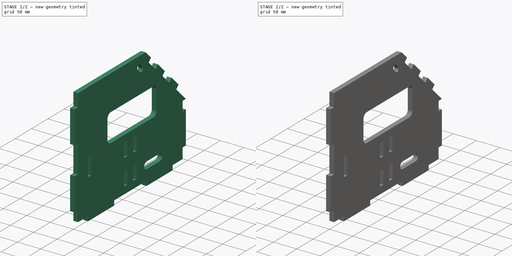
[diagram: build sequence overview — one tinted view per stage of 2, left to right]
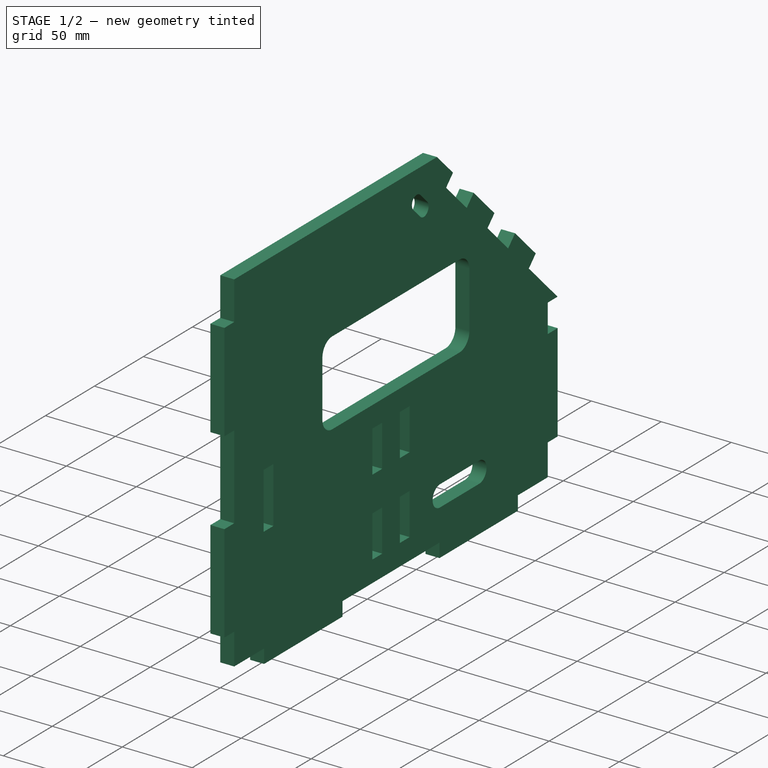
[diagram: stage 1 of 2 — iso view after this stage's code; geometry added in this stage tinted green]
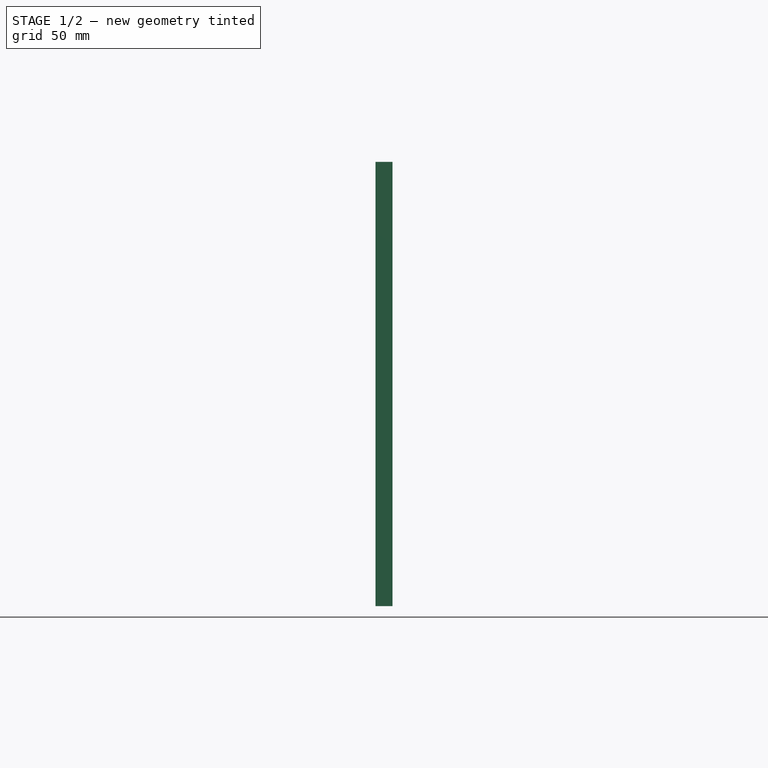
[diagram: stage 1 of 2 — front view after this stage's code; geometry added in this stage tinted green]
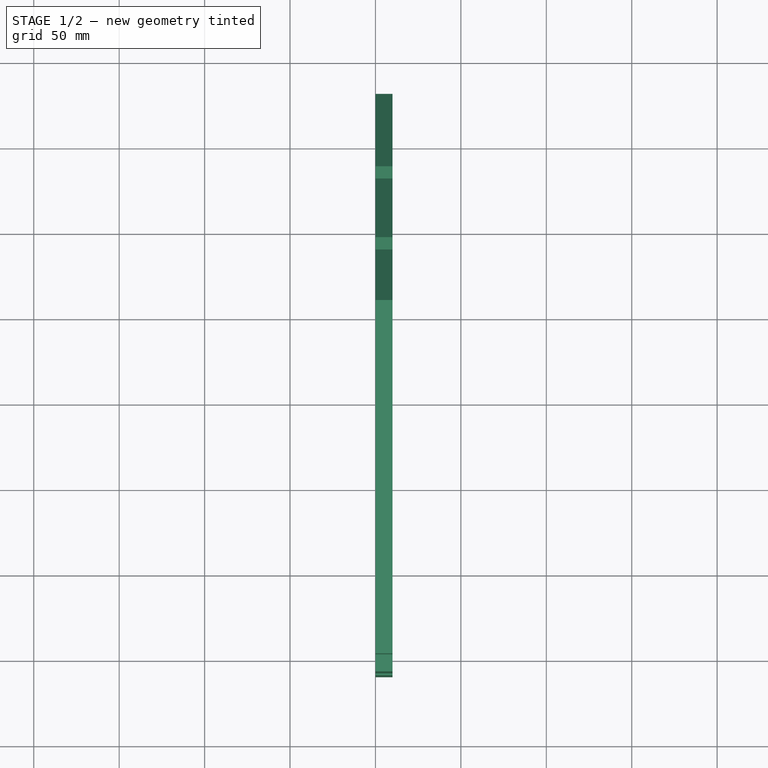
[diagram: stage 1 of 2 — top view after this stage's code; geometry added in this stage tinted green]
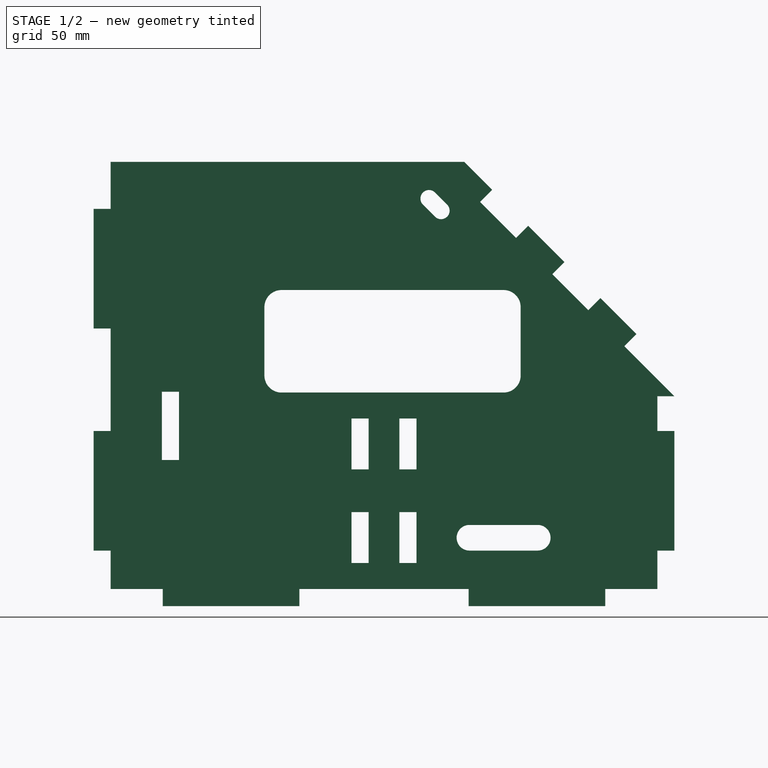
[diagram: stage 1 of 2 — right view after this stage's code; geometry added in this stage tinted green]
FCSTD DOCUMENT  (FreeCAD 0.19R19327 (Git))
Label: Separador
License: All rights reserved
LicenseURL: http://en.wikipedia.org/wiki/All_rights_reserved
objects: Sketcher::SketchObject×2, PartDesign::Pad×1, PartDesign::Pocket×1, PartDesign::Body×1
note: 7 computed .brp shape members not serialized (recipe doc carries the construction recipe); baked Part::Feature solids carry a one-line shape summary decoded from their .brp

FEATURE [Sketcher::SketchObject] Sketch
  MapMode = 5
  Placement = pos=(0,0,0) rot=(0.57735,0.57735,0.57735;2.0944rad)
  Support = -> [YZ_Plane]
  sketch-geometry (76):
    g0: LineSegment StartX=0 StartY=0 StartZ=0 EndX=0 EndY=22.5 EndZ=0
    g1: LineSegment StartX=0 StartY=22.5 StartZ=0 EndX=-10 EndY=22.5 EndZ=0
    g2: LineSegment StartX=-10 StartY=22.5 StartZ=0 EndX=-10 EndY=92.5 EndZ=0
    g3: LineSegment StartX=-10 StartY=92.5 StartZ=0 EndX=0 EndY=92.5 EndZ=0
    g4: LineSegment StartX=0 StartY=92.5 StartZ=0 EndX=0 EndY=152.5 EndZ=0
    g5: LineSegment StartX=0 StartY=152.5 StartZ=0 EndX=-10 EndY=152.5 EndZ=0
    g6: LineSegment StartX=-10 StartY=152.5 StartZ=0 EndX=-10 EndY=222.5 EndZ=0
    g7: LineSegment StartX=-10 StartY=222.5 StartZ=0 EndX=0 EndY=222.5 EndZ=0
    g8: LineSegment StartX=0 StartY=222.5 StartZ=0 EndX=0 EndY=250 EndZ=0
    g9: LineSegment StartX=320 StartY=112.8 StartZ=0 EndX=320 EndY=92.5 EndZ=0
    g10: LineSegment StartX=320 StartY=92.5 StartZ=0 EndX=330 EndY=92.5 EndZ=0
    g11: LineSegment StartX=330 StartY=92.5 StartZ=0 EndX=330 EndY=22.5 EndZ=0
    g12: LineSegment StartX=330 StartY=22.5 StartZ=0 EndX=320 EndY=22.5 EndZ=0
    g13: LineSegment StartX=320 StartY=22.5 StartZ=0 EndX=320 EndY=0 EndZ=0
    g14: LineSegment StartX=320 StartY=0 StartZ=0 EndX=289.5 EndY=0 EndZ=0
    g15: LineSegment StartX=289.5 StartY=0 StartZ=0 EndX=289.5 EndY=-10 EndZ=0
    g16: LineSegment StartX=289.5 StartY=-10 StartZ=0 EndX=209.5 EndY=-10 EndZ=0
    g17: LineSegment StartX=209.5 StartY=-10 StartZ=0 EndX=209.5 EndY=0 EndZ=0
    g18: LineSegment StartX=209.5 StartY=0 StartZ=0 EndX=110.5 EndY=0 EndZ=0
    g19: LineSegment StartX=110.5 StartY=0 StartZ=0 EndX=110.5 EndY=-10 EndZ=0
    g20: LineSegment StartX=110.5 StartY=-10 StartZ=0 EndX=30.5 EndY=-10 EndZ=0
    g21: LineSegment StartX=30.5 StartY=-10 StartZ=0 EndX=30.5 EndY=0 EndZ=0
    g22: LineSegment StartX=30.5 StartY=0 StartZ=0 EndX=0 EndY=0 EndZ=0
    g23: LineSegment StartX=320 StartY=112.8 StartZ=0 EndX=330 EndY=112.8 EndZ=0
    g24: LineSegment StartX=330 StartY=112.8 StartZ=0 EndX=300.634 EndY=142.166 EndZ=0
    g25: LineSegment StartX=300.634 StartY=142.166 StartZ=0 EndX=307.705 EndY=149.237 EndZ=0
    g26: LineSegment StartX=307.705 StartY=149.237 StartZ=0 EndX=286.633 EndY=170.309 EndZ=0
    g27: LineSegment StartX=286.633 StartY=170.309 StartZ=0 EndX=279.562 EndY=163.238 EndZ=0
    g28: LineSegment StartX=279.562 StartY=163.238 StartZ=0 EndX=258.49 EndY=184.31 EndZ=0
    g29: LineSegment StartX=258.49 StartY=184.31 StartZ=0 EndX=265.561 EndY=191.381 EndZ=0
    g30: LineSegment StartX=265.561 StartY=191.381 StartZ=0 EndX=244.348 EndY=212.594 EndZ=0
    g31: LineSegment StartX=244.348 StartY=212.594 StartZ=0 EndX=237.277 EndY=205.523 EndZ=0
    g32: LineSegment StartX=237.277 StartY=205.523 StartZ=0 EndX=216.205 EndY=226.595 EndZ=0
    g33: LineSegment StartX=216.205 StartY=226.595 StartZ=0 EndX=223.276 EndY=233.666 EndZ=0
    g34: LineSegment StartX=223.276 StartY=233.666 StartZ=0 EndX=206.942 EndY=250 EndZ=0
    g35: LineSegment StartX=206.942 StartY=250 StartZ=0 EndX=0 EndY=250 EndZ=0
    g36: LineSegment StartX=30 StartY=115.5 StartZ=0 EndX=40 EndY=115.5 EndZ=0
    g37: LineSegment StartX=40 StartY=115.5 StartZ=0 EndX=40 EndY=75.5 EndZ=0
    g38: LineSegment StartX=40 StartY=75.5 StartZ=0 EndX=30 EndY=75.5 EndZ=0
    g39: LineSegment StartX=30 StartY=75.5 StartZ=0 EndX=30 EndY=115.5 EndZ=0
    g40: LineSegment StartX=141 StartY=99.8 StartZ=0 EndX=151 EndY=99.8 EndZ=0
    g41: LineSegment StartX=151 StartY=99.8 StartZ=0 EndX=151 EndY=70 EndZ=0
    g42: LineSegment StartX=151 StartY=70 StartZ=0 EndX=141 EndY=70 EndZ=0
    g43: LineSegment StartX=141 StartY=70 StartZ=0 EndX=141 EndY=99.8 EndZ=0
    g44: LineSegment StartX=141 StartY=45 StartZ=0 EndX=151 EndY=45 EndZ=0
    g45: LineSegment StartX=151 StartY=45 StartZ=0 EndX=151 EndY=15.2 EndZ=0
    g46: LineSegment StartX=151 StartY=15.2 StartZ=0 EndX=141 EndY=15.2 EndZ=0
    g47: LineSegment StartX=141 StartY=15.2 StartZ=0 EndX=141 EndY=45 EndZ=0
    g48: LineSegment StartX=169 StartY=99.8 StartZ=0 EndX=179 EndY=99.8 EndZ=0
    g49: LineSegment StartX=179 StartY=99.8 StartZ=0 EndX=179 EndY=70 EndZ=0
    g50: LineSegment StartX=179 StartY=70 StartZ=0 EndX=169 EndY=70 EndZ=0
    g51: LineSegment StartX=169 StartY=70 StartZ=0 EndX=169 EndY=99.8 EndZ=0
    g52: LineSegment StartX=169 StartY=45 StartZ=0 EndX=179 EndY=45 EndZ=0
    g53: LineSegment StartX=179 StartY=45 StartZ=0 EndX=179 EndY=15.2 EndZ=0
    g54: LineSegment StartX=179 StartY=15.2 StartZ=0 EndX=169 EndY=15.2 EndZ=0
    g55: LineSegment StartX=169 StartY=15.2 StartZ=0 EndX=169 EndY=45 EndZ=0
    g56: LineSegment StartX=100 StartY=175 StartZ=0 EndX=230 EndY=175 EndZ=0
    g57: LineSegment StartX=240 StartY=165 StartZ=0 EndX=240 EndY=125 EndZ=0
    g58: LineSegment StartX=230 StartY=115 StartZ=0 EndX=100 EndY=115 EndZ=0
    g59: LineSegment StartX=90 StartY=125 StartZ=0 EndX=90 EndY=165 EndZ=0
    g60: ArcOfCircle CenterX=186.332 CenterY=228.54 CenterZ=0 NormalX=0 NormalY=0 NormalZ=1 AngleXU=0 Radius=5 StartAngle=0.785398 EndAngle=3.92699
    g61: ArcOfCircle CenterX=193.403 CenterY=221.469 CenterZ=0 NormalX=0 NormalY=0 NormalZ=1 AngleXU=0 Radius=5 StartAngle=3.92699 EndAngle=7.06858
    g62: LineSegment StartX=182.797 StartY=225.004 StartZ=0 EndX=189.868 EndY=217.933 EndZ=0
    g63: LineSegment StartX=189.868 StartY=232.076 StartZ=0 EndX=196.939 EndY=225.004 EndZ=0
    g64: LineSegment [constr] StartX=141 StartY=15.2 StartZ=0 EndX=179 EndY=15.2 EndZ=0
    g65: LineSegment [constr] StartX=179 StartY=15.2 StartZ=0 EndX=179 EndY=99.8 EndZ=0
    g66: LineSegment [constr] StartX=179 StartY=99.8 StartZ=0 EndX=141 EndY=99.8 EndZ=0
    g67: LineSegment [constr] StartX=141 StartY=99.8 StartZ=0 EndX=141 EndY=15.2 EndZ=0
    g68: ArcOfCircle CenterX=100 CenterY=165 CenterZ=0 NormalX=0 NormalY=0 NormalZ=1 AngleXU=0 Radius=10 StartAngle=1.5708 EndAngle=3.14159
    g69: ArcOfCircle CenterX=230 CenterY=165 CenterZ=0 NormalX=0 NormalY=0 NormalZ=1 AngleXU=0 Radius=10 StartAngle=5e-16 EndAngle=1.5708
    g70: ArcOfCircle CenterX=230 CenterY=125 CenterZ=0 NormalX=0 NormalY=0 NormalZ=1 AngleXU=0 Radius=10 StartAngle=4.71239 EndAngle=6.28319
    g71: ArcOfCircle CenterX=100 CenterY=125 CenterZ=0 NormalX=0 NormalY=0 NormalZ=1 AngleXU=0 Radius=10 StartAngle=3.14159 EndAngle=4.71239
    g72: ArcOfCircle CenterX=210 CenterY=30 CenterZ=0 NormalX=0 NormalY=0 NormalZ=1 AngleXU=0 Radius=7.5 StartAngle=1.5708 EndAngle=4.71239
    g73: ArcOfCircle CenterX=250 CenterY=30 CenterZ=0 NormalX=0 NormalY=0 NormalZ=1 AngleXU=0 Radius=7.5 StartAngle=4.71239 EndAngle=7.85398
    g74: LineSegment StartX=210 StartY=22.5 StartZ=0 EndX=250 EndY=22.5 EndZ=0
    g75: LineSegment StartX=210 StartY=37.5 StartZ=0 EndX=250 EndY=37.5 EndZ=0
  constraints (215):
    c: Coincident(g-1,g0)
    c: PointOnObject(g0,g-2)
    c: Coincident(g0,g1)
    c: Horizontal(g1)
    c: Coincident(g1,g2)
    c: Vertical(g2)
    c: Coincident(g2,g3)
    c: Horizontal(g3)
    c: Coincident(g3,g4)
    c: Vertical(g4)
    c: Coincident(g4,g5)
    c: Horizontal(g5)
    c: Coincident(g5,g6)
    c: Vertical(g6)
    c: Coincident(g6,g7)
    c: Horizontal(g7)
    c: Coincident(g7,g8)
    c: PointOnObject(g8,g-2)
    c: Coincident(g9,g10)
    c: Horizontal(g10)
    c: Coincident(g10,g11)
    c: Vertical(g11)
    c: Coincident(g11,g12)
    c: Horizontal(g12)
    c: Coincident(g12,g13)
    c: PointOnObject(g13,g-1)
    c: Vertical(g13)
    c: Coincident(g13,g14)
    c: Vertical(g15)
    c: Coincident(g17,g18)
    c: Horizontal(g18)
    c: Coincident(g18,g19)
    c: Coincident(g19,g20)
    c: Coincident(g20,g21)
    c: PointOnObject(g21,g-1)
    c: Coincident(g21,g22)
    c: Coincident(g22,g0)
    c: Equal(g7,g5)
    c: Equal(g5,g3)
    c: Equal(g3,g1)
    c: Equal(g1,g21)
    c: Equal(g21,g19)
    c: Equal(g19,g17)
    c: Equal(g15,g12)
    c: Equal(g12,g10)
    c: Vertical(g9)
    c: DistanceX(g1,g1) = 10
    c: Equal(g20,g16)
    c: DistanceX(g20,g20) = 80
    c: Vertical(g21)
    c: Vertical(g19)
    c: Equal(g22,g14)
    c: DistanceY(g2,g2) = 70
    c: Equal(g2,g6)
    c: Equal(g6,g11)
    c: DistanceY(g0,g0) = 22.5
    c: DistanceX(g22,g22) = 30.5
    c: DistanceY(g4,g4) = 60
    c: DistanceY(g9,g9) = 20.3
    c: Equal(g13,g0)
    c: DistanceX(g18,g18) = 99
    c: DistanceY(g8,g8) = 27.5
    c: Coincident(g9,g23)
    c: Horizontal(g23)
    c: Coincident(g23,g24)
    c: Coincident(g24,g25)
    c: Coincident(g25,g26)
    c: Coincident(g26,g27)
    c: Coincident(g27,g28)
    c: Coincident(g28,g29)
    c: Coincident(g29,g30)
    c: Coincident(g30,g31)
    c: Coincident(g31,g32)
    c: Coincident(g32,g33)
    c: Coincident(g33,g34)
    c: Coincident(g34,g35)
    c: Coincident(g35,g8)
    c: Horizontal(g35)
    c: Angle(g35,g34) = 2.35619
    c: Parallel(g34,g32)
    c: Parallel(g32,g30)
    c: Parallel(g28,g30)
    c: Equal(g28,g26)
    c: Parallel(g24,g26)
    c: Perpendicular(g33,g34)
    c: Perpendicular(g32,g31)
    c: Perpendicular(g28,g29)
    c: Perpendicular(g27,g28)
    c: Perpendicular(g24,g25)
    c: Parallel(g26,g28)
    c: Distance(g30) = 30
    c: Equal(g25,g27)
    c: Equal(g27,g29)
    c: Equal(g29,g31)
    c: Equal(g31,g33)
    c: Equal(g33,g7)
    c: Equal(g32,g28)
    c: Distance(g34) = 23.1
    c: Distance(g32) = 29.8
    c: Equal(g10,g1)
    c: Coincident(g14,g15)
    c: Coincident(g15,g16)
    c: Coincident(g17,g16)
    c: Horizontal(g20)
    c: Horizontal(g16)
    c: Horizontal(g14)
    c: Coincident(g36,g37)
    c: Coincident(g37,g38)
    c: Coincident(g38,g39)
    c: Coincident(g39,g36)
    c: Horizontal(g36)
    c: Horizontal(g38)
    c: Vertical(g37)
    c: Vertical(g39)
    c: Coincident(g40,g41)
    c: Coincident(g41,g42)
    c: Coincident(g42,g43)
    c: Coincident(g43,g40)
    c: Horizontal(g40)
    c: Horizontal(g42)
    c: Vertical(g41)
    c: Vertical(g43)
    c: Coincident(g44,g45)
    c: Coincident(g45,g46)
    c: Coincident(g46,g47)
    c: Coincident(g47,g44)
    c: Horizontal(g44)
    c: Horizontal(g46)
    c: Vertical(g45)
    c: Vertical(g47)
    c: Coincident(g48,g49)
    c: Coincident(g49,g50)
    c: Coincident(g50,g51)
    c: Coincident(g51,g48)
    c: Horizontal(g48)
    c: Horizontal(g50)
    c: Vertical(g49)
    c: Vertical(g51)
    c: Coincident(g52,g53)
    c: Coincident(g53,g54)
    c: Coincident(g54,g55)
    c: Coincident(g55,g52)
    c: Horizontal(g52)
    c: Horizontal(g54)
    c: Vertical(g53)
    c: Vertical(g55)
    c: Horizontal(g56)
    c: Horizontal(g58)
    c: Vertical(g57)
    c: Vertical(g59)
    c: Tangent(g60,g63) = 1.5708
    c: Tangent(g60,g62) = -1.5708
    c: Tangent(g62,g61) = -1.5708
    c: Tangent(g63,g61) = 1.5708
    c: Equal(g60,g61)
    c: Equal(g38,g46)
    c: Equal(g46,g54)
    c: Equal(g54,g50)
    c: Equal(g50,g42)
    c: DistanceX(g36,g36) = 10
    c: Equal(g43,g51)
    c: Equal(g51,g55)
    c: Equal(g55,g47)
    c: Coincident(g64,g65)
    c: Coincident(g65,g66)
    c: Coincident(g66,g67)
    c: Coincident(g67,g64)
    c: Horizontal(g64)
    c: Horizontal(g66)
    c: Vertical(g65)
    c: Vertical(g67)
    c: Coincident(g64,g46)
    c: Coincident(g40,g66)
    c: Coincident(g48,g65)
    c: Coincident(g53,g64)
    c: DistanceY(g67,g67) = 84.6
    c: DistanceX(g64,g64) = 38
    c: DistanceY(g0,g46) = 15.2
    c: DistanceY(g45,g45) = 29.8
    c: Tangent(g59,g68) = 1.5708
    c: Tangent(g56,g68) = 1.5708
    c: Tangent(g56,g69) = 1.5708
    c: Tangent(g57,g69) = 1.5708
    c: Tangent(g57,g70) = 1.5708
    c: Tangent(g58,g70) = 1.5708
    c: Tangent(g58,g71) = 1.5708
    c: Tangent(g59,g71) = 1.5708
    c: Equal(g71,g68)
    c: Equal(g68,g69)
    c: Equal(g69,g70)
    c: Radius(g71) = 10
    c: DistanceY(g58,g56) = 60
    c: DistanceX(g59,g57) = 150
    c: Parallel(g63,g32)
    c: Radius(g61) = 5
    c: Distance(g63) = 10
    c: DistanceX(g0,g46) = 141
    c: DistanceY(g37,g37) = 40
    c: DistanceY(g0,g38) = 75.5
    c: DistanceX(g0,g38) = 30
    c: DistanceY(g0,g58) = 115
    c: DistanceX(g0,g58) = 100
    c: DistanceX(g60,g34) = 20.61
    c: DistanceY(g60,g34) = 21.46
    c: DistanceX(g23,g23) = 10
    c: Tangent(g72,g75) = 1.5708
    c: Tangent(g72,g74) = -1.5708
    c: Tangent(g74,g73) = -1.5708
    c: Tangent(g75,g73) = 1.5708
    c: Horizontal(g74)
    c: Equal(g72,g73)
    c: Radius(g73) = 7.5
    c: DistanceX(g75,g75) = 40
    c: DistanceX(g0,g72) = 210
    c: DistanceY(g0,g72) = 30
FEATURE [PartDesign::Pad] Pad
  Length = 10
  Length2 = 100
  Placement = pos=(0,0,0) rot=(0.57735,0.57735,0.57735;2.0944rad)
  Profile = -> Sketch
  Type = 0
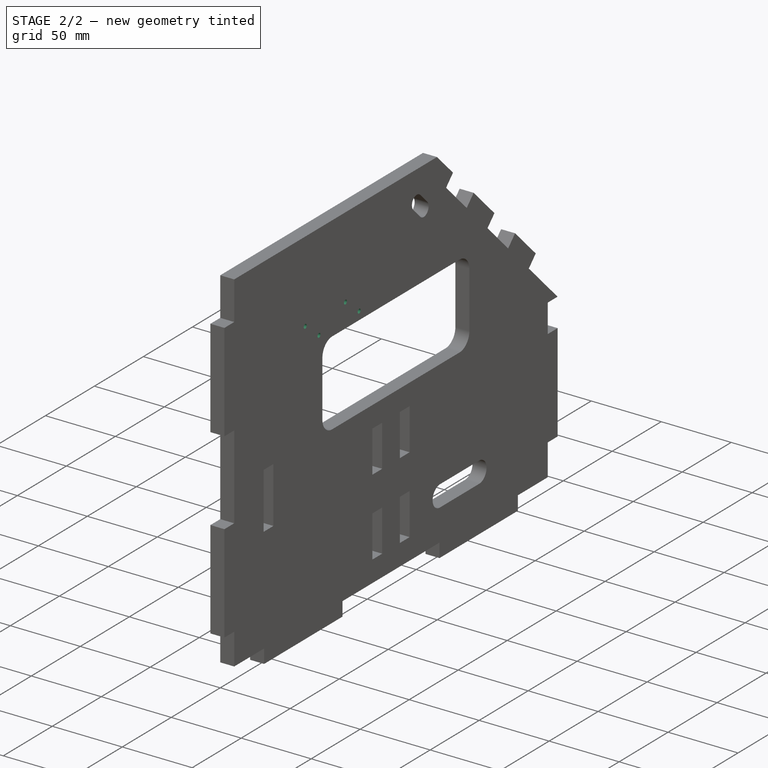
[diagram: stage 2 of 2 — iso view after this stage's code; geometry added in this stage tinted green]
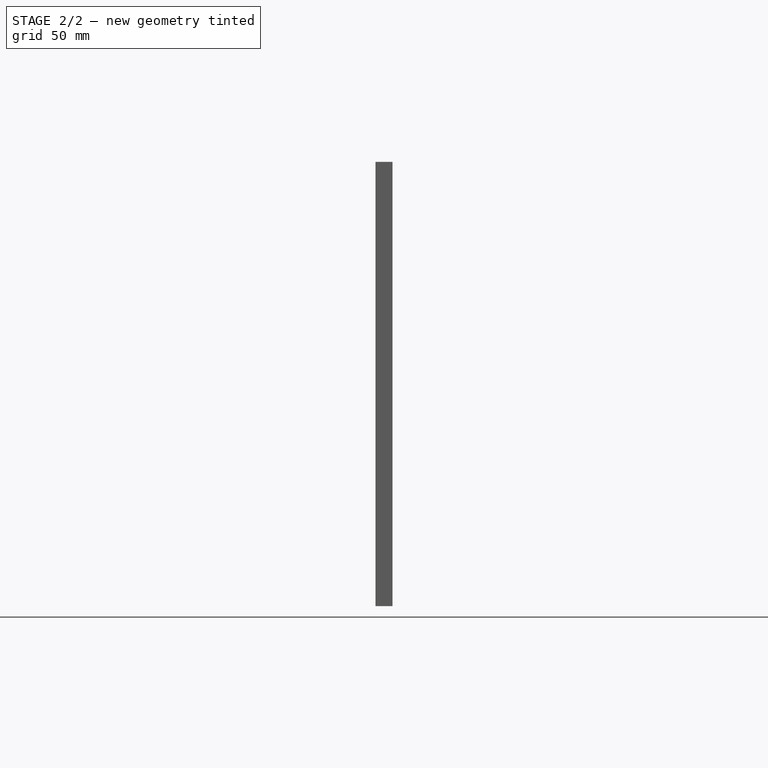
[diagram: stage 2 of 2 — front view after this stage's code; geometry added in this stage tinted green]
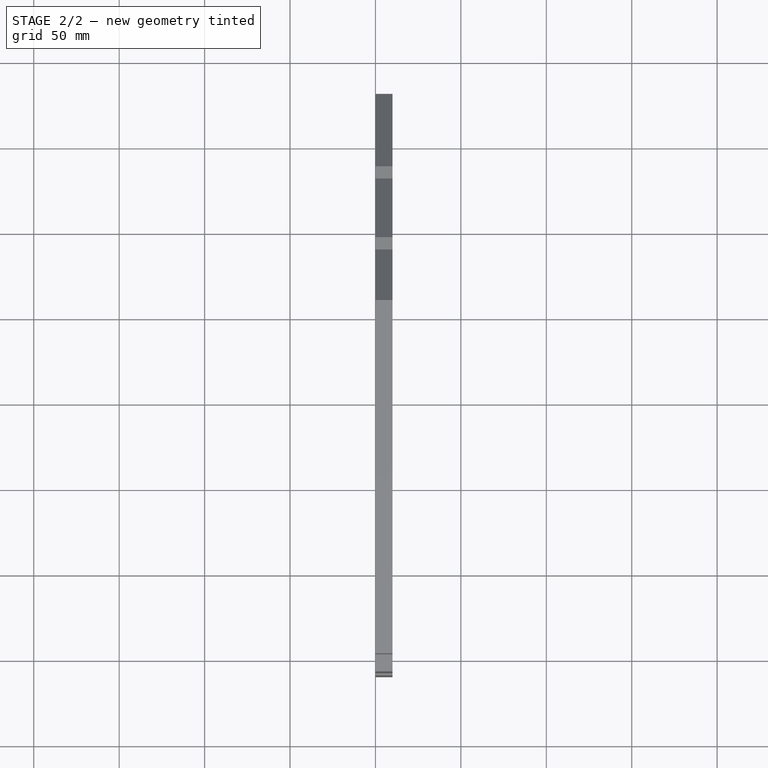
[diagram: stage 2 of 2 — top view after this stage's code; geometry added in this stage tinted green]
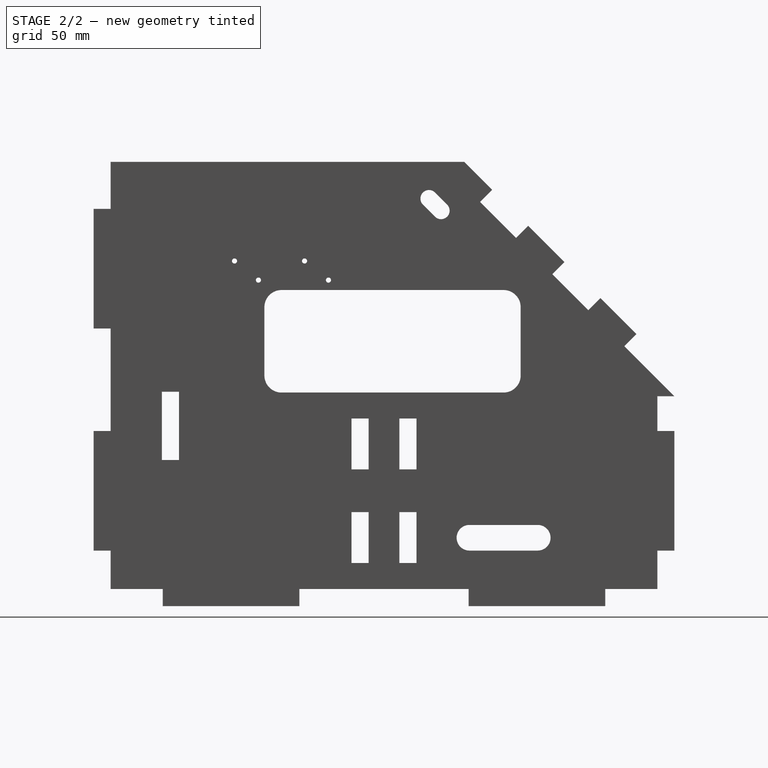
[diagram: stage 2 of 2 — right view after this stage's code; geometry added in this stage tinted green]
FEATURE [Sketcher::SketchObject] Sketch001
  MapMode = 5
  Placement = pos=(0,0,0) rot=(0.57735,0.57735,0.57735;2.0944rad)
  Support = -> [YZ_Plane]
  sketch-geometry (5):
    g0: Circle CenterX=72.5 CenterY=192 CenterZ=0 NormalX=0 NormalY=0 NormalZ=1 AngleXU=0 Radius=1.5
    g1: Circle CenterX=86.5 CenterY=180.8 CenterZ=0 NormalX=0 NormalY=0 NormalZ=1 AngleXU=0 Radius=1.5
    g2: Circle CenterX=113.5 CenterY=192 CenterZ=0 NormalX=0 NormalY=0 NormalZ=1 AngleXU=0 Radius=1.5
    g3: Circle CenterX=127.5 CenterY=180.8 CenterZ=0 NormalX=0 NormalY=0 NormalZ=1 AngleXU=0 Radius=1.5
    g4: LineSegment [constr] StartX=86.5 StartY=180.8 StartZ=0 EndX=127.5 EndY=180.8 EndZ=0
  constraints (14):
    c: Equal(g0,g1)
    c: Equal(g1,g2)
    c: Equal(g2,g3)
    c: Radius(g2) = 1.5
    c: DistanceX(g0,g1) = 14
    c: DistanceX(g2,g3) = 14
    c: DistanceY(g1,g0) = 11.2
    c: DistanceY(g3,g2) = 11.2
    c: Coincident(g4,g1)
    c: Coincident(g4,g3)
    c: Horizontal(g4)
    c: DistanceX(g4,g4) = 41
    c: DistanceX(g-1,g1) = 86.5
    c: DistanceY(g-1,g1) = 180.8
FEATURE [PartDesign::Pocket] Pocket  label="Taladro_Sensores"
  BaseFeature = -> Pad
  Length = 5
  Length2 = 100
  Placement = pos=(0,0,0) rot=(0.57735,0.57735,0.57735;2.0944rad)
  Profile = -> Sketch001
  Reversed = true
  Type = 1
FEATURE [PartDesign::Body] Body
  Group = -> [Sketch,Pad,Sketch001,Pocket]
  Origin = -> Origin
  Tip = -> Pocket
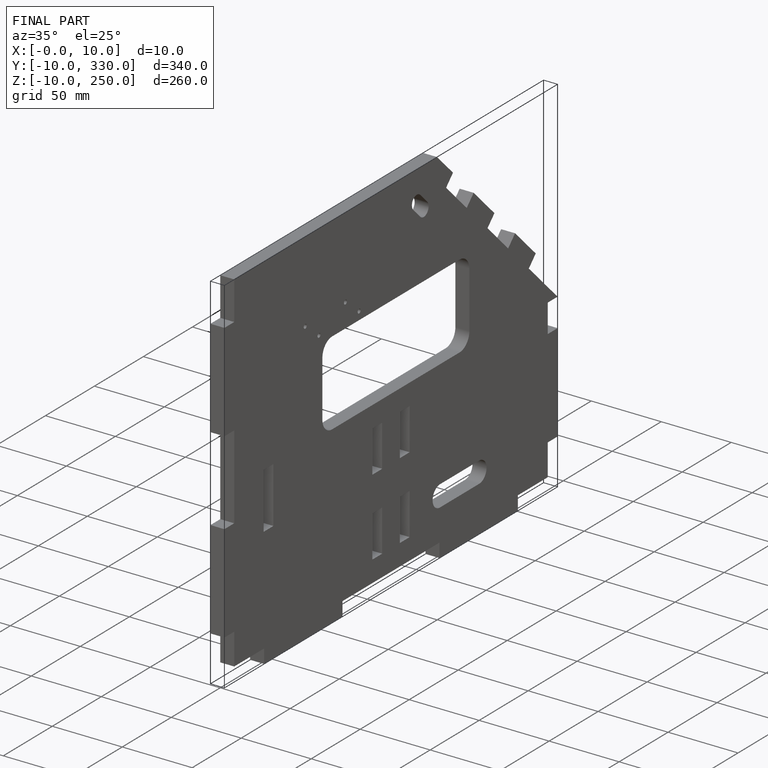
[diagram: finished part — iso view with bounding-box wireframe]
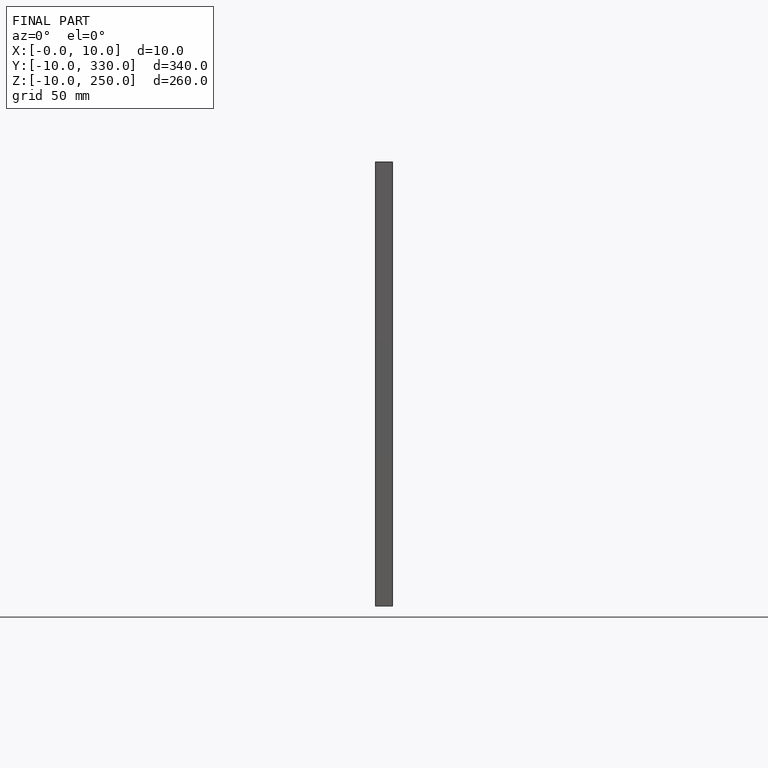
[diagram: finished part — front view with bounding-box wireframe]
